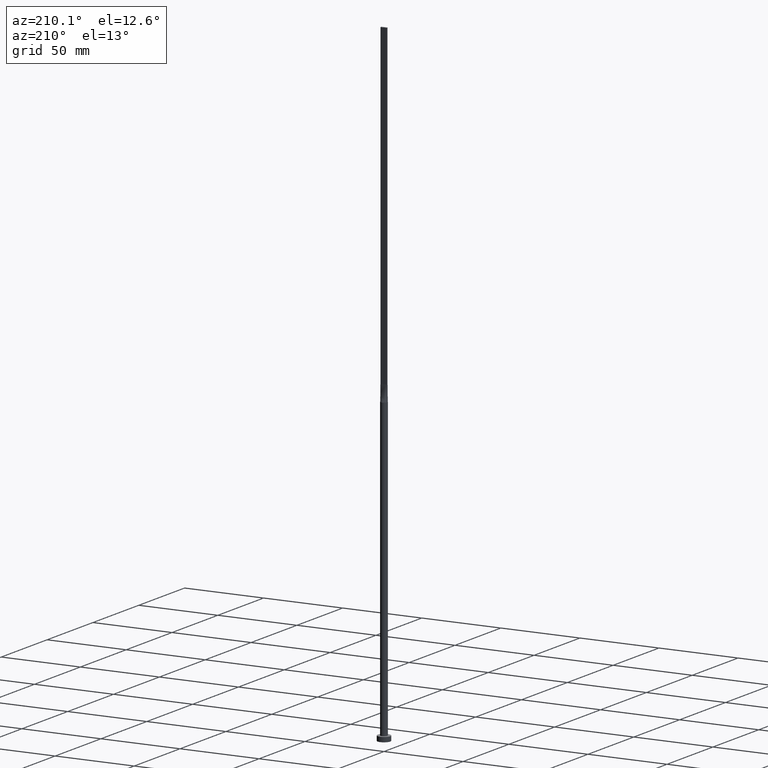
[diagram: clean part render]
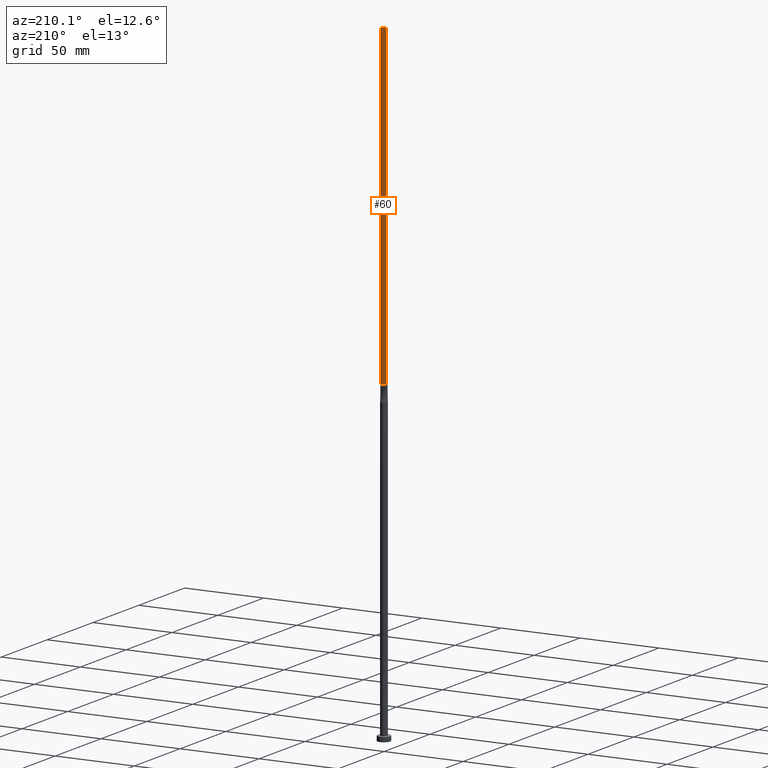
[diagram: same view with one face highlighted and labeled with its STEP entity id]
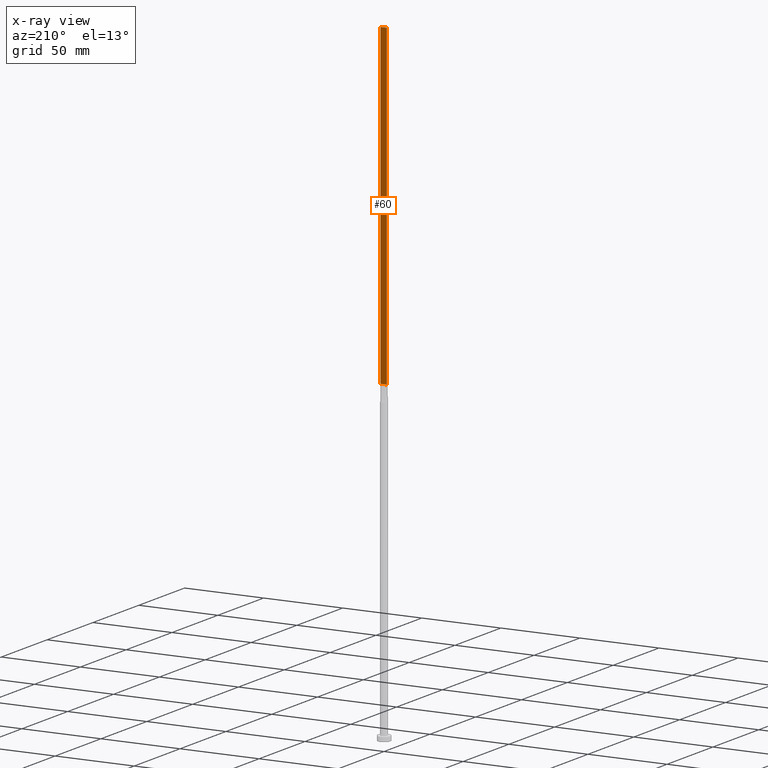
[diagram: x-ray of the same camera — body ghosted, the highlighted face saturated]
A machine part, auxiliary view. The second image highlights one B-rep face of the part: STEP entity #60.
The next image is the same camera in x-ray: the body ghosted, the highlighted face saturated — about 0% of this face is hidden behind the body in this view.
In plain terms, the highlighted planar face has unit normal (0, -1, 0).
Its self-contained STEP definition (entity closure, byte-faithful):
#1 = ORIENTED_EDGE ( 'NONE', *, *, #455, .T. ) ;
#2 = EDGE_CURVE ( 'NONE', #216, #61, #432, .T. ) ;
#6 = PLANE ( 'NONE',  #385 ) ;
#12 = CARTESIAN_POINT ( 'NONE',  ( 1.899999999999999689, 0.6000000000000001998, 200.0000000000000000 ) ) ;
#17 = VERTEX_POINT ( 'NONE', #12 ) ;
#60 = ADVANCED_FACE ( 'NONE', ( #269 ), #6, .F. ) ;
#61 = VERTEX_POINT ( 'NONE', #228 ) ;
#105 = EDGE_LOOP ( 'NONE', ( #254, #412, #240, #1 ) ) ;
#141 = CARTESIAN_POINT ( 'NONE',  ( 1.899999999999999689, 0.6000000000000001998, 400.0000000000000000 ) ) ;
#162 = LINE ( 'NONE', #486, #263 ) ;
#185 = DIRECTION ( 'NONE',  ( 0.000000000000000000, -1.000000000000000000, 0.000000000000000000 ) ) ;
#206 = CARTESIAN_POINT ( 'NONE',  ( -1.899999999999999689, 0.6000000000000001998, 400.0000000000000000 ) ) ;
#216 = VERTEX_POINT ( 'NONE', #206 ) ;
#225 = CARTESIAN_POINT ( 'NONE',  ( 1.899999999999999689, 0.6000000000000001998, 400.0000000000000000 ) ) ;
#228 = CARTESIAN_POINT ( 'NONE',  ( -1.899999999999999689, 0.6000000000000001998, 200.0000000000000000 ) ) ;
#240 = ORIENTED_EDGE ( 'NONE', *, *, #519, .F. ) ;
#254 = ORIENTED_EDGE ( 'NONE', *, *, #438, .T. ) ;
#263 = VECTOR ( 'NONE', #305, 1000.000000000000000 ) ;
#269 = FACE_OUTER_BOUND ( 'NONE', #105, .T. ) ;
#301 = VECTOR ( 'NONE', #555, 1000.000000000000000 ) ;
#305 = DIRECTION ( 'NONE',  ( -1.000000000000000000, -0.000000000000000000, -0.000000000000000000 ) ) ;
#311 = CARTESIAN_POINT ( 'NONE',  ( 1.899999999999999689, 0.6000000000000001998, 400.0000000000000000 ) ) ;
#314 = LINE ( 'NONE', #141, #301 ) ;
#315 = CARTESIAN_POINT ( 'NONE',  ( 1.899999999999999689, 0.6000000000000001998, 400.0000000000000000 ) ) ;
#322 = CARTESIAN_POINT ( 'NONE',  ( -1.899999999999999689, 0.6000000000000001998, 400.0000000000000000 ) ) ;
#324 = DIRECTION ( 'NONE',  ( -0.000000000000000000, -0.000000000000000000, -1.000000000000000000 ) ) ;
#357 = DIRECTION ( 'NONE',  ( 0.000000000000000000, -0.000000000000000000, -1.000000000000000000 ) ) ;
#385 = AXIS2_PLACEMENT_3D ( 'NONE', #225, #185, #357 ) ;
#412 = ORIENTED_EDGE ( 'NONE', *, *, #2, .F. ) ;
#432 = LINE ( 'NONE', #322, #452 ) ;
#438 = EDGE_CURVE ( 'NONE', #17, #61, #162, .T. ) ;
#452 = VECTOR ( 'NONE', #324, 1000.000000000000000 ) ;
#455 = EDGE_CURVE ( 'NONE', #518, #17, #314, .T. ) ;
#460 = VECTOR ( 'NONE', #493, 1000.000000000000000 ) ;
#486 = CARTESIAN_POINT ( 'NONE',  ( -1.899999999999999689, 0.6000000000000001998, 200.0000000000000000 ) ) ;
#493 = DIRECTION ( 'NONE',  ( -1.000000000000000000, 0.000000000000000000, 0.000000000000000000 ) ) ;
#498 = LINE ( 'NONE', #311, #460 ) ;
#518 = VERTEX_POINT ( 'NONE', #315 ) ;
#519 = EDGE_CURVE ( 'NONE', #518, #216, #498, .T. ) ;
#555 = DIRECTION ( 'NONE',  ( -0.000000000000000000, -0.000000000000000000, -1.000000000000000000 ) ) ;